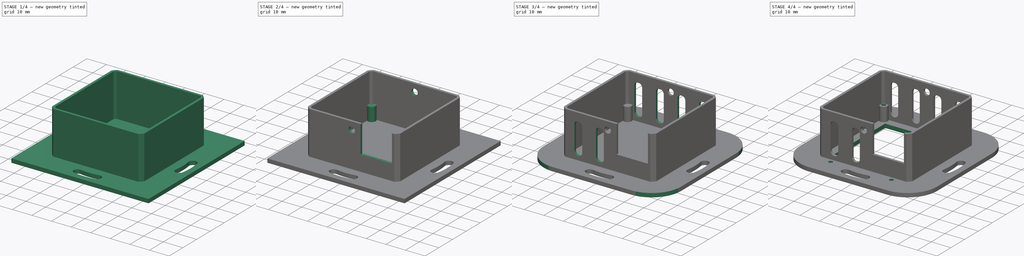
[diagram: build sequence overview — one tinted view per stage of 4, left to right]
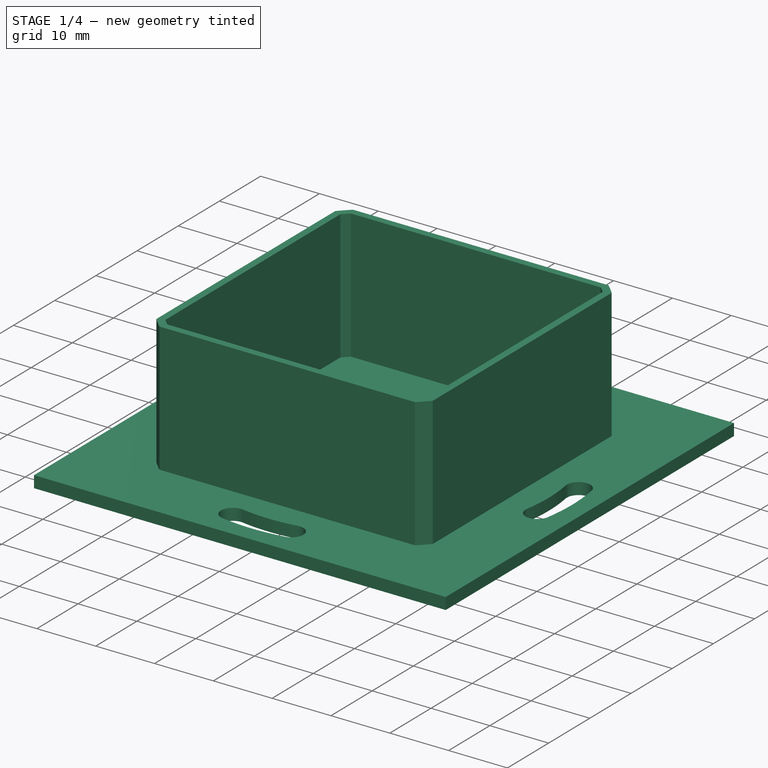
[diagram: stage 1 of 4 — iso view after this stage's code; geometry added in this stage tinted green]
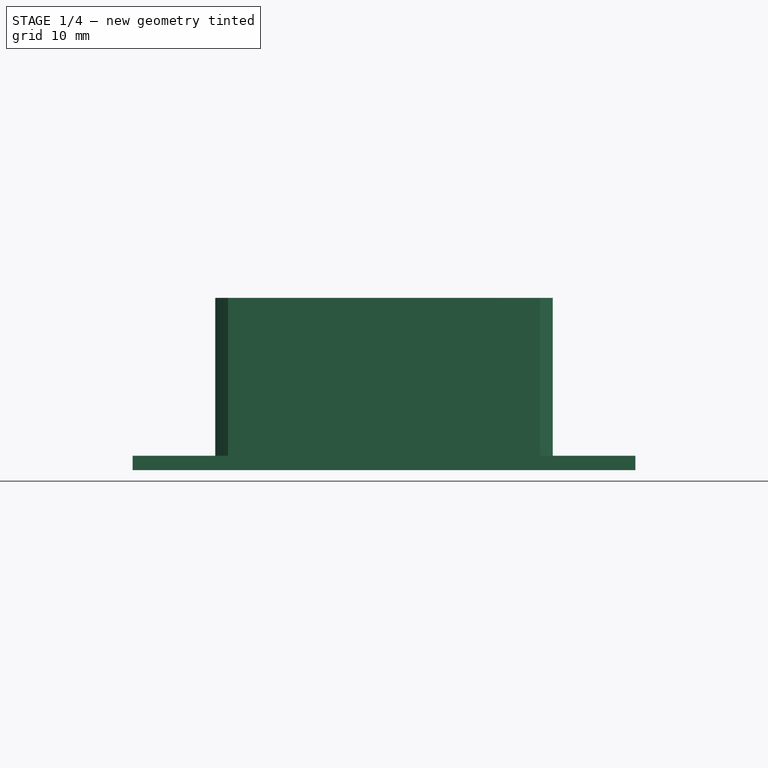
[diagram: stage 1 of 4 — front view after this stage's code; geometry added in this stage tinted green]
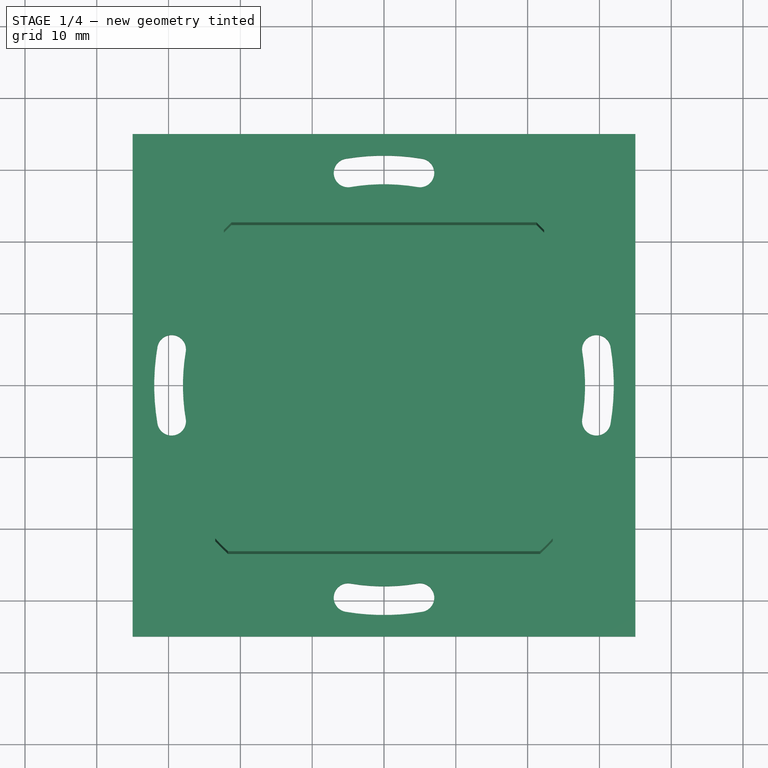
[diagram: stage 1 of 4 — top view after this stage's code; geometry added in this stage tinted green]
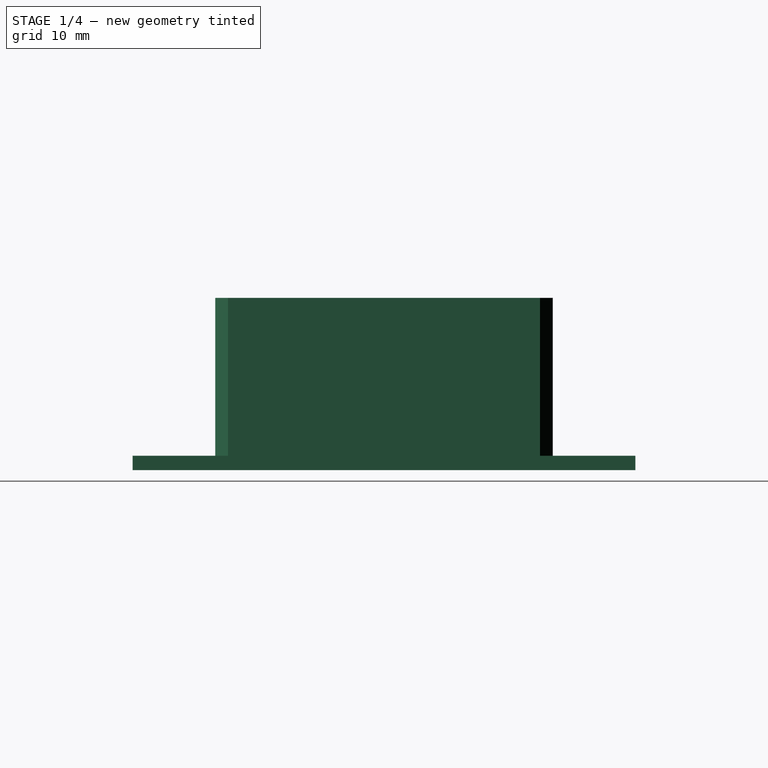
[diagram: stage 1 of 4 — right view after this stage's code; geometry added in this stage tinted green]
FCSTD DOCUMENT  (FreeCAD 0.20R)
Label: box3
License: All rights reserved
LicenseURL: http://en.wikipedia.org/wiki/All_rights_reserved
objects: Sketcher::SketchObject×11, PartDesign::Pocket×8, PartDesign::Pad×3, PartDesign::Fillet×1, PartDesign::Body×1
note: 36 computed .brp shape members not serialized (recipe doc carries the construction recipe); baked Part::Feature solids carry a one-line shape summary decoded from their .brp

FEATURE [Sketcher::SketchObject] Sketch
  FullyConstrained = true
  MapMode = 5
  Support = -> [XY_Plane]
  sketch-geometry (20):
    g0: LineSegment StartX=-35 StartY=35 StartZ=0 EndX=35 EndY=35 EndZ=0
    g1: LineSegment StartX=35 StartY=35 StartZ=0 EndX=35 EndY=-35 EndZ=0
    g2: LineSegment StartX=35 StartY=-35 StartZ=0 EndX=-35 EndY=-35 EndZ=0
    g3: LineSegment StartX=-35 StartY=-35 StartZ=0 EndX=-35 EndY=35 EndZ=0
    g4: ArcOfCircle CenterX=0 CenterY=0 CenterZ=0 NormalX=0 NormalY=0 NormalZ=1 AngleXU=0 Radius=28 StartAngle=6.11574 EndAngle=6.45063
    g5: ArcOfCircle CenterX=0 CenterY=0 CenterZ=0 NormalX=0 NormalY=0 NormalZ=1 AngleXU=0 Radius=32 StartAngle=6.11574 EndAngle=6.45063
    g6: ArcOfCircle CenterX=0 CenterY=0 CenterZ=0 NormalX=0 NormalY=0 NormalZ=1 AngleXU=0 Radius=28 StartAngle=2.97414 EndAngle=3.30904
    g7: ArcOfCircle CenterX=0 CenterY=0 CenterZ=0 NormalX=0 NormalY=0 NormalZ=1 AngleXU=0 Radius=32 StartAngle=2.97414 EndAngle=3.30904
    g8: ArcOfCircle CenterX=-29.5804 CenterY=5 CenterZ=0 NormalX=0 NormalY=0 NormalZ=1 AngleXU=0 Radius=2 StartAngle=6.11574 EndAngle=9.25733
    g9: ArcOfCircle CenterX=-29.5804 CenterY=-5 CenterZ=0 NormalX=0 NormalY=0 NormalZ=1 AngleXU=0 Radius=2 StartAngle=3.30904 EndAngle=6.45063
    g10: ArcOfCircle CenterX=29.5804 CenterY=5 CenterZ=0 NormalX=0 NormalY=0 NormalZ=1 AngleXU=0 Radius=2 StartAngle=0.167448 EndAngle=3.30904
    g11: ArcOfCircle CenterX=29.5804 CenterY=-5 CenterZ=0 NormalX=0 NormalY=0 NormalZ=1 AngleXU=0 Radius=2 StartAngle=2.97414 EndAngle=6.11574
    g12: ArcOfCircle CenterX=0 CenterY=0 CenterZ=0 NormalX=0 NormalY=0 NormalZ=1 AngleXU=0 Radius=28 StartAngle=1.40335 EndAngle=1.73824
    g13: ArcOfCircle CenterX=0 CenterY=0 CenterZ=0 NormalX=0 NormalY=0 NormalZ=1 AngleXU=0 Radius=32 StartAngle=1.40335 EndAngle=1.73824
    g14: ArcOfCircle CenterX=0 CenterY=0 CenterZ=0 NormalX=0 NormalY=0 NormalZ=1 AngleXU=0 Radius=28 StartAngle=4.54494 EndAngle=4.87984
    g15: ArcOfCircle CenterX=0 CenterY=0 CenterZ=0 NormalX=0 NormalY=0 NormalZ=1 AngleXU=0 Radius=32 StartAngle=4.54494 EndAngle=4.87984
    g16: ArcOfCircle CenterX=5 CenterY=-29.5804 CenterZ=0 NormalX=0 NormalY=0 NormalZ=1 AngleXU=0 Radius=2 StartAngle=4.87984 EndAngle=8.02143
    g17: ArcOfCircle CenterX=-5 CenterY=-29.5804 CenterZ=0 NormalX=0 NormalY=0 NormalZ=1 AngleXU=0 Radius=2 StartAngle=1.40334 EndAngle=4.54495
    g18: ArcOfCircle CenterX=5 CenterY=29.5804 CenterZ=0 NormalX=0 NormalY=0 NormalZ=1 AngleXU=0 Radius=2 StartAngle=4.54494 EndAngle=7.68653
    g19: ArcOfCircle CenterX=-5 CenterY=29.5804 CenterZ=0 NormalX=0 NormalY=0 NormalZ=1 AngleXU=0 Radius=2 StartAngle=1.73824 EndAngle=4.87984
  constraints (52):
    c: Coincident(g0,g1)
    c: Coincident(g1,g2)
    c: Coincident(g2,g3)
    c: Coincident(g3,g0)
    c: Horizontal(g2)
    c: Vertical(g3)
    c: DistanceY(g1,g1) = 70
    c: DistanceX(g0,g0) = 70
    c: Symmetric(g0,g0,g-2)
    c: Symmetric(g1,g0,g-1)
    c: Coincident(g4,g-1)
    c: Coincident(g5,g4)
    c: Coincident(g6,g4)
    c: Coincident(g7,g4)
    c: Tangent(g11,g4) = 1.5708
    c: Tangent(g11,g5) = -1.5708
    c: Tangent(g10,g5) = -1.5708
    c: Tangent(g10,g4) = 1.5708
    c: Radius(g10) = 2
    c: Tangent(g8,g6) = 1.5708
    c: Tangent(g8,g7) = -1.5708
    c: Tangent(g9,g6) = 1.5708
    c: Tangent(g9,g7) = -1.5708
    c: Equal(g10,g8)
    c: Horizontal(g6,g4)
    c: Horizontal(g6,g4)
    c: Radius(g4) = 28
    c: Radius(g6) = 28
    c: DistanceY(g-1,g8) = 5
    c: DistanceY(g9,g-1) = 5
    c: Coincident(g12,g4)
    c: Coincident(g13,g4)
    c: Coincident(g14,g4)
    c: Coincident(g15,g4)
    c: Coincident(g17,g14)
    c: Coincident(g17,g15)
    c: Coincident(g19,g13)
    c: Coincident(g19,g12)
    c: Radius(g18) = 2
    c: Equal(g18,g19)
    c: Equal(g18,g17)
    c: Equal(g18,g16)
    c: Symmetric(g18,g19,g-2)
    c: DistanceX(g-1,g18) = 5
    c: Tangent(g18,g13) = -1.5708
    c: Tangent(g18,g12) = 1.5708
    c: Radius(g14) = 28
    c: Radius(g12) = 28
    c: Tangent(g16,g14) = 1.5708
    c: Tangent(g16,g15) = -1.5708
    c: Symmetric(g16,g17,g-2)
    c: DistanceX(g-1,g16) = 5
FEATURE [PartDesign::Pad] Pad
  Direction = (0,0,1)
  Length = 2
  Length2 = 100
  Profile = -> Sketch
  Type = 0
FEATURE [Sketcher::SketchObject] Sketch001
  FullyConstrained = true
  MapMode = 5
  Placement = pos=(0,0,2) rot=(0,0,1;0rad)
  Support = -> [Pad]
  sketch-geometry (8):
    g0: LineSegment StartX=21.7198 StartY=-23.5 StartZ=0 EndX=-21.7198 EndY=-23.5 EndZ=0
    g1: LineSegment StartX=-21.7198 StartY=23.5 StartZ=0 EndX=21.7198 EndY=23.5 EndZ=0
    g2: LineSegment StartX=-23.5 StartY=21.7198 StartZ=0 EndX=-23.5 EndY=-21.7198 EndZ=0
    g3: LineSegment StartX=23.5 StartY=21.7198 StartZ=0 EndX=23.5 EndY=-21.7198 EndZ=0
    g4: ArcOfCircle CenterX=0 CenterY=0 CenterZ=0 NormalX=0 NormalY=0 NormalZ=1 AngleXU=0 Radius=32 StartAngle=3.88764 EndAngle=3.96634
    g5: ArcOfCircle CenterX=0 CenterY=0 CenterZ=0 NormalX=0 NormalY=0 NormalZ=1 AngleXU=0 Radius=32 StartAngle=2.31685 EndAngle=2.39554
    g6: ArcOfCircle CenterX=0 CenterY=0 CenterZ=0 NormalX=0 NormalY=0 NormalZ=1 AngleXU=0 Radius=32 StartAngle=5.45844 EndAngle=5.53713
    g7: ArcOfCircle CenterX=0 CenterY=0 CenterZ=0 NormalX=0 NormalY=0 NormalZ=1 AngleXU=0 Radius=32 StartAngle=0.746051 EndAngle=0.824745
  constraints (22):
    c: Horizontal(g0)
    c: Horizontal(g1)
    c: Vertical(g3)
    c: Coincident(g4,g-1)
    c: Coincident(g4,g0)
    c: Coincident(g4,g2)
    c: Coincident(g5,g4)
    c: Coincident(g5,g1)
    c: Coincident(g5,g2)
    c: Coincident(g6,g4)
    c: Coincident(g6,g0)
    c: Coincident(g6,g3)
    c: Coincident(g7,g4)
    c: Coincident(g7,g1)
    c: Coincident(g7,g3)
    c: Radius(g7) = 32
    c: Equal(g7,g5)
    c: Symmetric(g2,g2,g-1)
    c: Horizontal(g2,g3)
    c: Symmetric(g0,g1,g-1)
    c: DistanceX(g2,g3) = 47
    c: DistanceY(g0,g1) = 47
FEATURE [PartDesign::Pad] Pad001
  BaseFeature = -> Pad
  Direction = (0,0,1)
  Length = 22
  Length2 = 100
  Profile = -> Sketch001
  Type = 0
FEATURE [Sketcher::SketchObject] Sketch002
  FullyConstrained = true
  MapMode = 5
  Placement = pos=(0,0,24) rot=(0,0,1;0rad)
  Support = -> [Pad001]
  sketch-geometry (8):
    g0: LineSegment StartX=-22.3 StartY=21.245 StartZ=0 EndX=-22.3 EndY=-21.245 EndZ=0
    g1: LineSegment StartX=22.3 StartY=21.245 StartZ=0 EndX=22.3 EndY=-21.245 EndZ=0
    g2: LineSegment StartX=-21.245 StartY=-22.3 StartZ=0 EndX=21.245 EndY=-22.3 EndZ=0
    g3: LineSegment StartX=-21.245 StartY=22.3 StartZ=0 EndX=21.245 EndY=22.3 EndZ=0
    g4: ArcOfCircle CenterX=0 CenterY=0 CenterZ=0 NormalX=0 NormalY=0 NormalZ=1 AngleXU=0 Radius=30.8 StartAngle=0.761175 EndAngle=0.809621
    g5: ArcOfCircle CenterX=0 CenterY=0 CenterZ=0 NormalX=0 NormalY=0 NormalZ=1 AngleXU=0 Radius=30.8 StartAngle=2.33197 EndAngle=2.38042
    g6: ArcOfCircle CenterX=0 CenterY=0 CenterZ=0 NormalX=0 NormalY=0 NormalZ=1 AngleXU=0 Radius=30.8 StartAngle=3.90277 EndAngle=3.95121
    g7: ArcOfCircle CenterX=0 CenterY=0 CenterZ=0 NormalX=0 NormalY=0 NormalZ=1 AngleXU=0 Radius=30.8 StartAngle=5.47356 EndAngle=5.52201
  constraints (22):
    c: Vertical(g0)
    c: Vertical(g1)
    c: Horizontal(g2)
    c: Horizontal(g3)
    c: Coincident(g4,g-1)
    c: Coincident(g4,g3)
    c: Coincident(g4,g1)
    c: Coincident(g5,g4)
    c: Coincident(g5,g0)
    c: Coincident(g5,g3)
    c: Coincident(g6,g4)
    c: Coincident(g6,g0)
    c: Coincident(g6,g2)
    c: Coincident(g7,g4)
    c: Coincident(g7,g2)
    c: Coincident(g7,g1)
    c: DistanceX(g0,g1) = 44.6
    c: DistanceY(g2,g3) = 44.6
    c: Symmetric(g2,g3,g-1)
    c: Symmetric(g1,g0,g-2)
    c: Equal(g6,g5)
    c: Radius(g5) = 30.8
FEATURE [PartDesign::Pocket] Pocket
  BaseFeature = -> Pad001
  Direction = (0,0,-1)
  Length = 22
  Length2 = 100
  Profile = -> Sketch002
  Type = 0
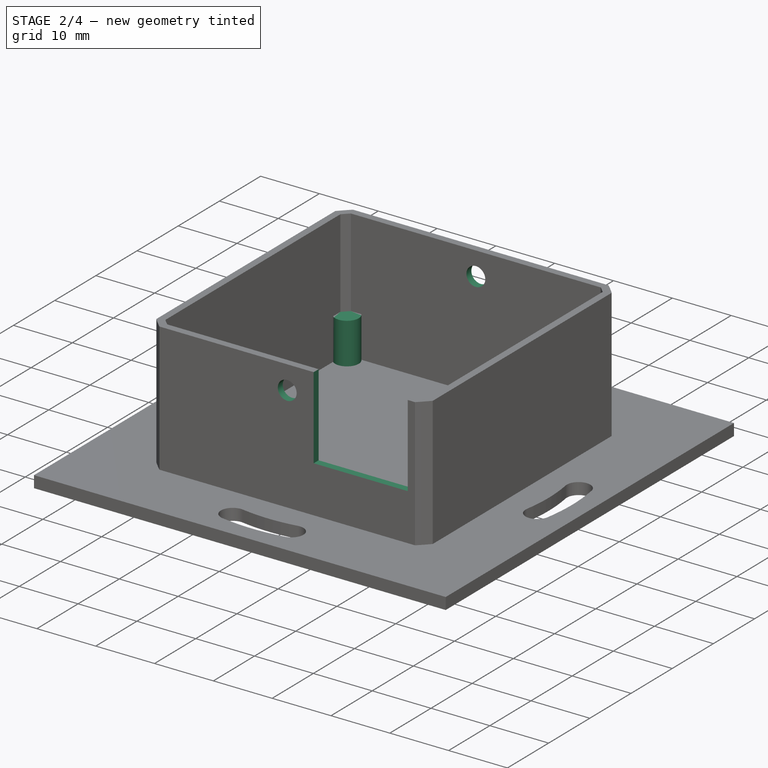
[diagram: stage 2 of 4 — iso view after this stage's code; geometry added in this stage tinted green]
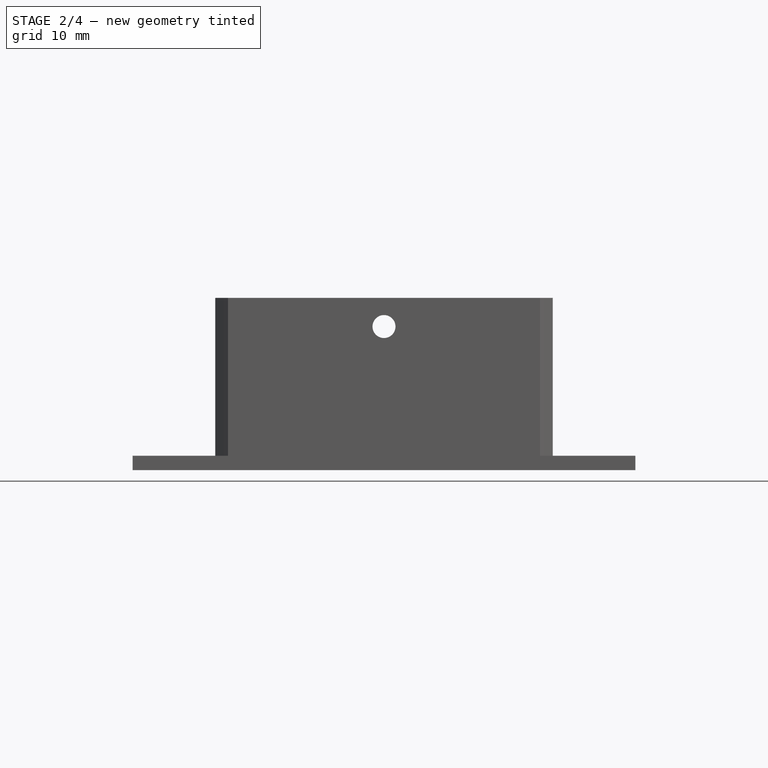
[diagram: stage 2 of 4 — front view after this stage's code; geometry added in this stage tinted green]
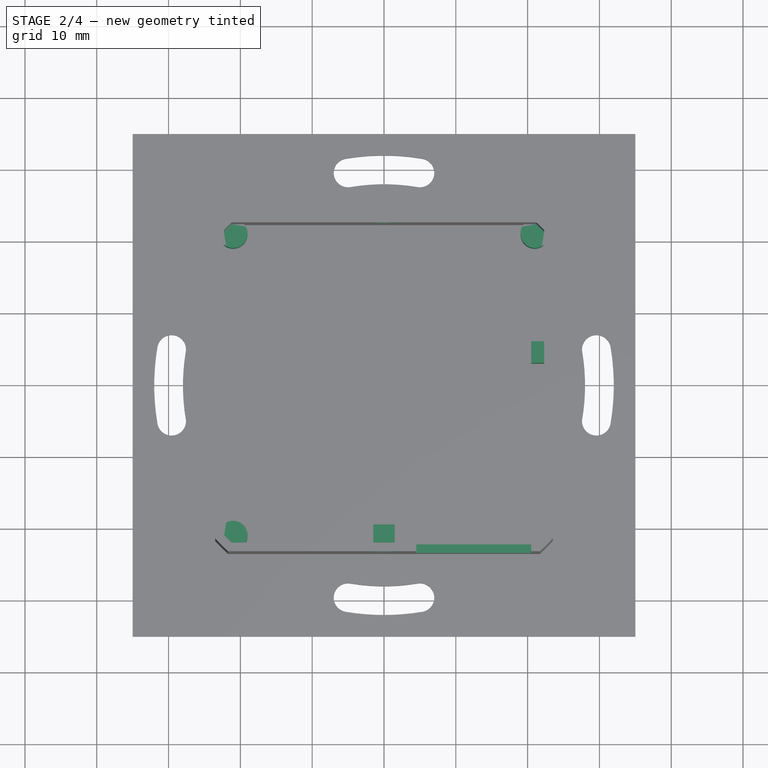
[diagram: stage 2 of 4 — top view after this stage's code; geometry added in this stage tinted green]
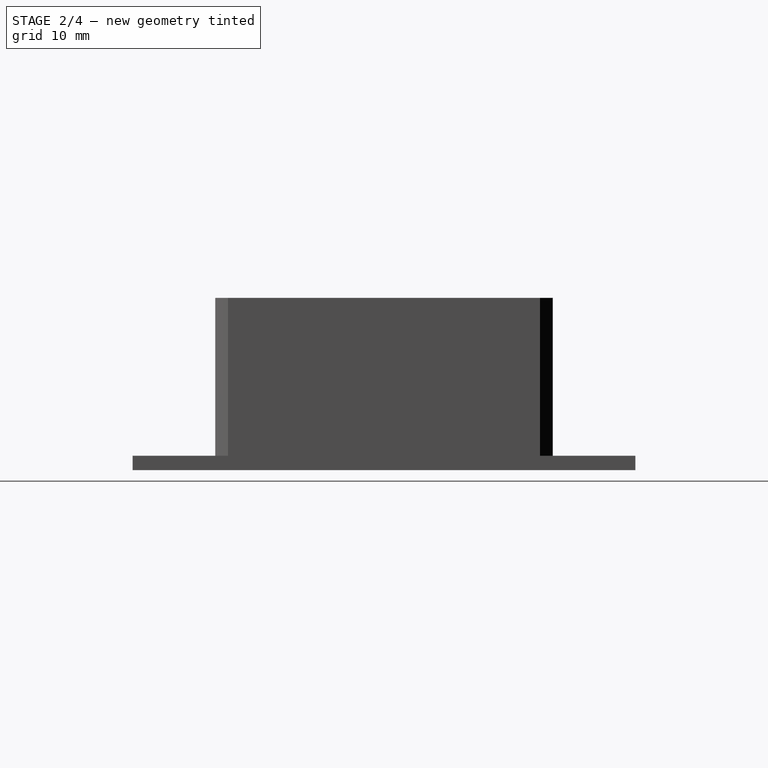
[diagram: stage 2 of 4 — right view after this stage's code; geometry added in this stage tinted green]
FEATURE [Sketcher::SketchObject] Sketch003
  FullyConstrained = false
  MapMode = 5
  Placement = pos=(0,-23.5,0) rot=(1,0,0;1.5708rad)
  Support = -> [Pocket]
  sketch-geometry (4):
    g0: LineSegment StartX=4.5 StartY=33.8647 StartZ=0 EndX=20.5 EndY=33.8647 EndZ=0
    g1: LineSegment StartX=20.5 StartY=33.8647 StartZ=0 EndX=20.5 EndY=10 EndZ=0
    g2: LineSegment StartX=20.5 StartY=10 StartZ=0 EndX=4.5 EndY=10 EndZ=0
    g3: LineSegment StartX=4.5 StartY=10 StartZ=0 EndX=4.5 EndY=33.8647 EndZ=0
  constraints (11):
    c: Coincident(g0,g1)
    c: Coincident(g1,g2)
    c: Coincident(g2,g3)
    c: Coincident(g3,g0)
    c: Horizontal(g0)
    c: Horizontal(g2)
    c: Vertical(g1)
    c: Vertical(g3)
    c: DistanceX(g0,g0) = 16
    c: DistanceX(g-1,g0) = 20.5
    c: DistanceY(g-1,g2) = 10
FEATURE [PartDesign::Pocket] Pocket001
  BaseFeature = -> Pocket
  Direction = (0,1,-2e-16)
  Length = 18
  Length2 = 100
  Profile = -> Sketch003
  Type = 0
FEATURE [Sketcher::SketchObject] Sketch009
  FullyConstrained = true
  MapMode = 5
  Placement = pos=(0,-23.5,0) rot=(1,0,0;1.5708rad)
  sketch-geometry (1):
    g0: Circle CenterX=0 CenterY=20 CenterZ=0 NormalX=0 NormalY=0 NormalZ=1 AngleXU=0 Radius=1.6
  constraints (3):
    c: PointOnObject(g0,g-2)
    c: Radius(g0) = 1.6
    c: DistanceY(g-1,g0) = 20
FEATURE [PartDesign::Pocket] Pocket005
  BaseFeature = -> Pocket001
  Direction = (0,1,-2e-16)
  Length = 5
  Length2 = 100
  Profile = -> Sketch009
  Type = 1
FEATURE [Sketcher::SketchObject] Sketch010
  FullyConstrained = true
  MapMode = 5
  Placement = pos=(0,0,2) rot=(0,0,1;0rad)
  Support = -> [Pocket005]
  sketch-geometry (11):
    g0: Circle CenterX=21 CenterY=21 CenterZ=0 NormalX=0 NormalY=0 NormalZ=1 AngleXU=0 Radius=2
    g1: Circle CenterX=-21 CenterY=21 CenterZ=0 NormalX=0 NormalY=0 NormalZ=1 AngleXU=0 Radius=2
    g2: Circle CenterX=-21 CenterY=-21 CenterZ=0 NormalX=0 NormalY=0 NormalZ=1 AngleXU=0 Radius=2
    g3: LineSegment StartX=20.5 StartY=6 StartZ=0 EndX=23 EndY=6 EndZ=0
    g4: LineSegment StartX=23 StartY=6 StartZ=0 EndX=23 EndY=3 EndZ=0
    g5: LineSegment StartX=23 StartY=3 StartZ=0 EndX=20.5 EndY=3 EndZ=0
    g6: LineSegment StartX=20.5 StartY=3 StartZ=0 EndX=20.5 EndY=6 EndZ=0
    g7: LineSegment StartX=-1.5 StartY=-19.5 StartZ=0 EndX=1.5 EndY=-19.5 EndZ=0
    g8: LineSegment StartX=1.5 StartY=-19.5 StartZ=0 EndX=1.5 EndY=-22.5 EndZ=0
    g9: LineSegment StartX=1.5 StartY=-22.5 StartZ=0 EndX=-1.5 EndY=-22.5 EndZ=0
    g10: LineSegment StartX=-1.5 StartY=-22.5 StartZ=0 EndX=-1.5 EndY=-19.5 EndZ=0
  constraints (30):
    c: Symmetric(g1,g0,g-2)
    c: Symmetric(g2,g1,g-1)
    c: DistanceX(g1,g0) = 42
    c: DistanceY(g2,g1) = 42
    c: Coincident(g3,g4)
    c: Coincident(g4,g5)
    c: Coincident(g5,g6)
    c: Coincident(g6,g3)
    c: Horizontal(g3)
    c: Horizontal(g5)
    c: Vertical(g4)
    c: Coincident(g7,g8)
    c: Coincident(g8,g9)
    c: Coincident(g9,g10)
    c: Coincident(g10,g7)
    c: Horizontal(g9)
    c: Vertical(g8)
    c: Vertical(g10)
    c: Radius(g0) = 2
    c: Equal(g0,g1)
    c: Equal(g0,g2)
    c: DistanceX(g3,g3) = 2.5
    c: DistanceX(g-1,g3) = 20.5
    c: Symmetric(g7,g7,g-2)
    c: DistanceY(g7,g-1) = 19.5
    c: DistanceX(g7,g7) = 3
    c: DistanceY(g8,g8) = 3
    c: DistanceY(g6,g6) = 3
    c: Vertical(g6)
    c: DistanceY(g-1,g4) = 3
FEATURE [PartDesign::Pad] Pad004
  BaseFeature = -> Pocket005
  Direction = (0,0,1)
  Length = 7
  Length2 = 100
  Profile = -> Sketch010
  Type = 0
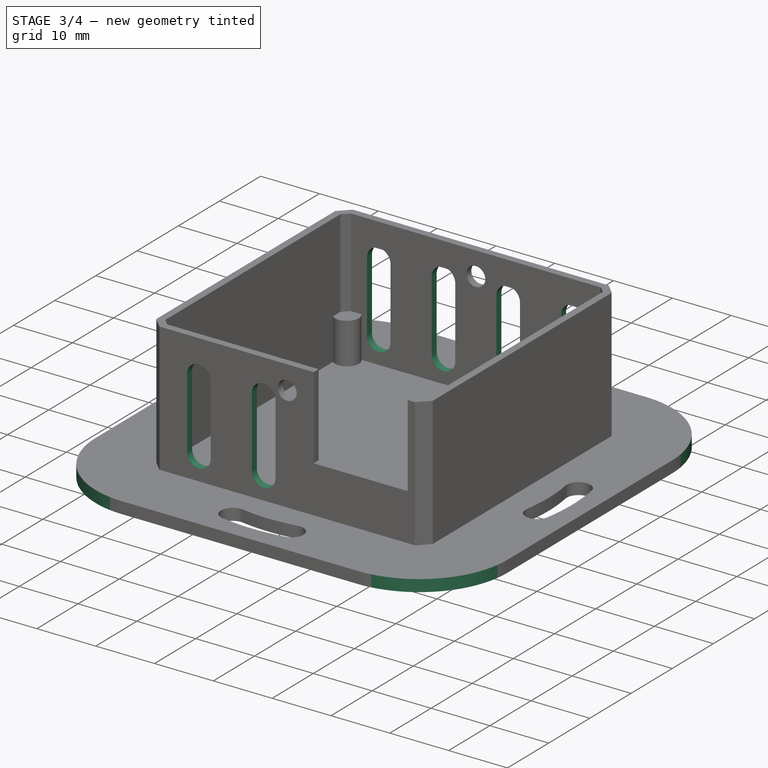
[diagram: stage 3 of 4 — iso view after this stage's code; geometry added in this stage tinted green]
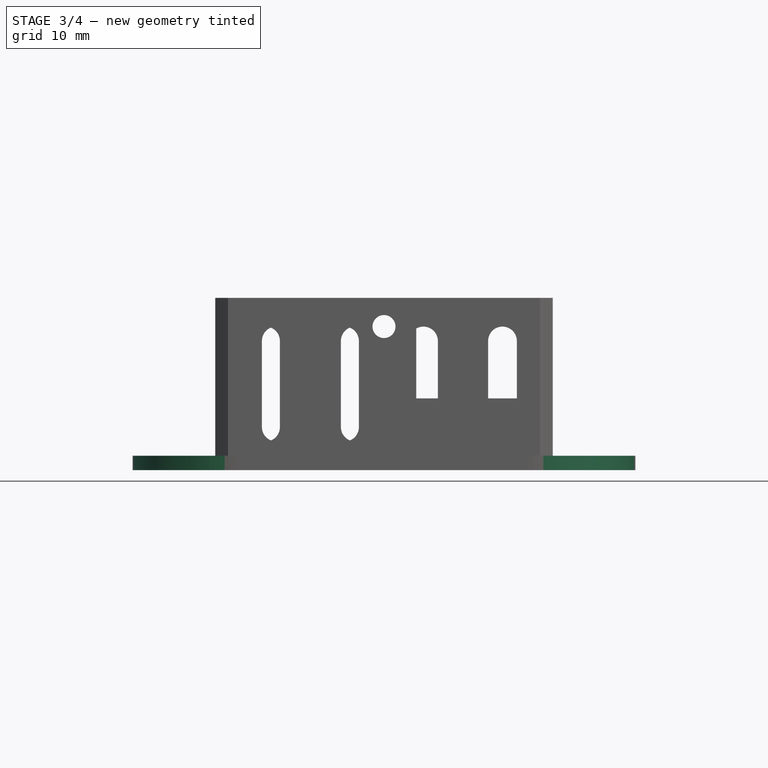
[diagram: stage 3 of 4 — front view after this stage's code; geometry added in this stage tinted green]
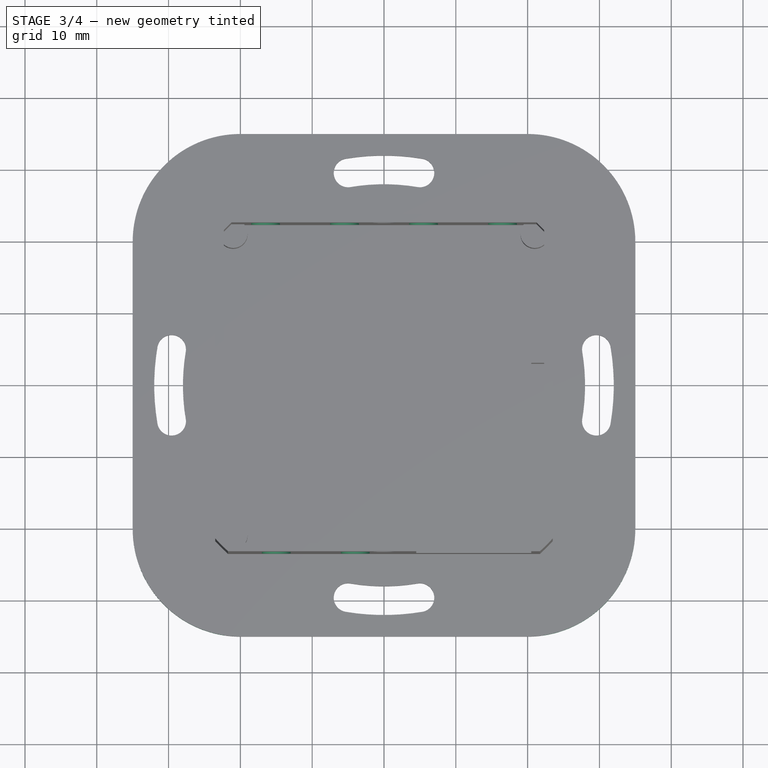
[diagram: stage 3 of 4 — top view after this stage's code; geometry added in this stage tinted green]
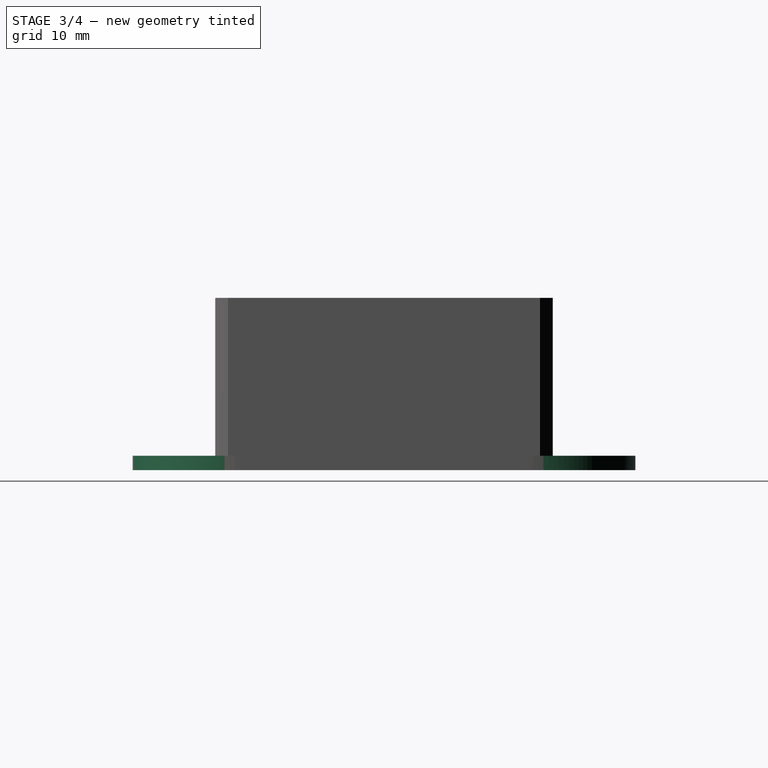
[diagram: stage 3 of 4 — right view after this stage's code; geometry added in this stage tinted green]
FEATURE [Sketcher::SketchObject] Sketch011
  FullyConstrained = false
  MapMode = 5
  Placement = pos=(0,23.5,0) rot=(0,0.707107,0.707107;3.14159rad)
  Support = -> [Pad004]
  sketch-geometry (19):
    g0: LineSegment StartX=-18.5 StartY=17.9931 StartZ=0 EndX=-18.5 EndY=5.9931 EndZ=0
    g1: LineSegment StartX=-14.5 StartY=17.9931 StartZ=0 EndX=-14.5 EndY=5.9931 EndZ=0
    g2: LineSegment StartX=-7.5 StartY=17.9931 StartZ=0 EndX=-7.5 EndY=5.9931 EndZ=0
    g3: LineSegment StartX=-3.5 StartY=17.9931 StartZ=0 EndX=-3.5 EndY=5.9931 EndZ=0
    g4: LineSegment StartX=3.5 StartY=17.9931 StartZ=0 EndX=3.5 EndY=5.9931 EndZ=0
    g5: LineSegment StartX=7.5 StartY=17.9931 StartZ=0 EndX=7.5 EndY=5.9931 EndZ=0
    g6: LineSegment StartX=14.5 StartY=17.9931 StartZ=0 EndX=14.5 EndY=5.9931 EndZ=0
    g7: LineSegment StartX=18.5 StartY=17.9931 StartZ=0 EndX=18.5 EndY=5.9931 EndZ=0
    g8: ArcOfCircle CenterX=-16.5 CenterY=17.9931 CenterZ=0 NormalX=0 NormalY=0 NormalZ=1 AngleXU=0 Radius=2 StartAngle=0 EndAngle=3.14159
    g9: ArcOfCircle CenterX=-5.5 CenterY=17.9931 CenterZ=0 NormalX=0 NormalY=0 NormalZ=1 AngleXU=0 Radius=2 StartAngle=0 EndAngle=3.14159
    g10: ArcOfCircle CenterX=5.5 CenterY=17.9931 CenterZ=0 NormalX=0 NormalY=0 NormalZ=1 AngleXU=0 Radius=2 StartAngle=2e-16 EndAngle=3.14159
    g11: ArcOfCircle CenterX=16.5 CenterY=17.9931 CenterZ=0 NormalX=0 NormalY=0 NormalZ=1 AngleXU=0 Radius=2 StartAngle=9e-16 EndAngle=3.14159
    g12: ArcOfCircle CenterX=16.5 CenterY=5.9931 CenterZ=0 NormalX=0 NormalY=0 NormalZ=1 AngleXU=0 Radius=2 StartAngle=3.14159 EndAngle=6.28319
    g13: ArcOfCircle CenterX=5.5 CenterY=5.9931 CenterZ=0 NormalX=0 NormalY=0 NormalZ=1 AngleXU=0 Radius=2 StartAngle=3.14159 EndAngle=6.28319
    g14: ArcOfCircle CenterX=-5.5 CenterY=5.9931 CenterZ=0 NormalX=0 NormalY=0 NormalZ=1 AngleXU=0 Radius=2 StartAngle=3.14159 EndAngle=6.28319
    g15: ArcOfCircle CenterX=-16.5 CenterY=5.9931 CenterZ=0 NormalX=0 NormalY=0 NormalZ=1 AngleXU=0 Radius=2 StartAngle=3.14159 EndAngle=6.28319
    g16: LineSegment StartX=-14.5 StartY=5.9931 StartZ=0 EndX=-7.5 EndY=5.9931 EndZ=0
    g17: LineSegment StartX=-3.5 StartY=5.9931 StartZ=0 EndX=3.5 EndY=5.9931 EndZ=0
    g18: LineSegment StartX=7.5 StartY=5.9931 StartZ=0 EndX=14.5 EndY=5.9931 EndZ=0
  constraints (60):
    c: Vertical(g0)
    c: Vertical(g2)
    c: Vertical(g3)
    c: Vertical(g4)
    c: Vertical(g5)
    c: Vertical(g6)
    c: Vertical(g7)
    c: Coincident(g8,g0)
    c: Coincident(g8,g1)
    c: Coincident(g9,g2)
    c: Coincident(g9,g3)
    c: Coincident(g10,g4)
    c: Coincident(g10,g5)
    c: Coincident(g11,g6)
    c: Coincident(g11,g7)
    c: Coincident(g12,g7)
    c: Coincident(g12,g6)
    c: Coincident(g13,g5)
    c: Coincident(g13,g4)
    c: Coincident(g14,g3)
    c: Coincident(g14,g2)
    c: Coincident(g15,g1)
    c: Coincident(g15,g0)
    c: Horizontal(g0,g15)
    c: Horizontal(g15,g1)
    c: Horizontal(g2,g14)
    c: Horizontal(g14,g3)
    c: Horizontal(g4,g13)
    c: Horizontal(g13,g5)
    c: Horizontal(g6,g12)
    c: Horizontal(g12,g7)
    c: Horizontal(g0,g8)
    c: Horizontal(g8,g1)
    c: Horizontal(g2,g9)
    c: Horizontal(g9,g3)
    c: Horizontal(g4,g10)
    c: Horizontal(g10,g5)
    c: Horizontal(g6,g11)
    c: Horizontal(g11,g7)
    c: Symmetric(g3,g4,g-2)
    c: Horizontal(g4,g3)
    c: Equal(g1,g3)
    c: Equal(g5,g7)
    c: Horizontal(g3,g1)
    c: Horizontal(g4,g6)
    c: Radius(g9) = 2
    c: Equal(g9,g10)
    c: Equal(g10,g11)
    c: DistanceX(g5,g6) = 7
    c: Equal(g9,g8)
    c: Coincident(g16,g1)
    c: Coincident(g16,g2)
    c: Coincident(g17,g3)
    c: Coincident(g17,g4)
    c: Coincident(g18,g5)
    c: Coincident(g18,g6)
    c: Equal(g18,g17)
    c: Equal(g17,g16)
    c: Vertical(g1)
    c: DistanceY(g0,g0) = 12
FEATURE [PartDesign::Pocket] Pocket006
  BaseFeature = -> Pad004
  Direction = (0,-1,2e-16)
  Length = 5
  Length2 = 100
  Profile = -> Sketch011
  Type = 0
FEATURE [Sketcher::SketchObject] Sketch012
  FullyConstrained = false
  MapMode = 5
  Placement = pos=(0,-23.5,0) rot=(1,0,0;1.5708rad)
  Support = -> [Pocket006]
  sketch-geometry (8):
    g0: LineSegment StartX=-17 StartY=18 StartZ=0 EndX=-17 EndY=6 EndZ=0
    g1: LineSegment StartX=-13 StartY=18 StartZ=0 EndX=-13 EndY=6 EndZ=0
    g2: LineSegment StartX=-6 StartY=18 StartZ=0 EndX=-6 EndY=6 EndZ=0
    g3: LineSegment StartX=-2 StartY=18 StartZ=0 EndX=-2 EndY=6 EndZ=0
    g4: ArcOfCircle CenterX=-15 CenterY=18 CenterZ=0 NormalX=0 NormalY=0 NormalZ=1 AngleXU=0 Radius=2 StartAngle=-9e-16 EndAngle=3.14159
    g5: ArcOfCircle CenterX=-4 CenterY=18 CenterZ=0 NormalX=0 NormalY=0 NormalZ=1 AngleXU=0 Radius=2 StartAngle=-9e-16 EndAngle=3.14159
    g6: ArcOfCircle CenterX=-15 CenterY=6 CenterZ=0 NormalX=0 NormalY=0 NormalZ=1 AngleXU=0 Radius=2 StartAngle=3.14159 EndAngle=6.28319
    g7: ArcOfCircle CenterX=-4 CenterY=6 CenterZ=0 NormalX=0 NormalY=0 NormalZ=1 AngleXU=0 Radius=2 StartAngle=3.14159 EndAngle=6.28319
  constraints (27):
    c: Vertical(g0)
    c: Vertical(g1)
    c: Vertical(g2)
    c: Vertical(g3)
    c: Coincident(g4,g0)
    c: Coincident(g4,g1)
    c: Coincident(g5,g2)
    c: Coincident(g5,g3)
    c: Coincident(g6,g0)
    c: Coincident(g6,g1)
    c: Coincident(g7,g2)
    c: Coincident(g7,g3)
    c: Horizontal(g1,g6)
    c: Horizontal(g6,g0)
    c: Horizontal(g1,g4)
    c: Horizontal(g4,g0)
    c: Horizontal(g2,g5)
    c: Horizontal(g5,g3)
    c: Horizontal(g3,g7)
    c: Horizontal(g7,g2)
    c: DistanceX(g3,g-1) = 2
    c: Radius(g5) = 2
    c: Equal(g5,g4)
    c: Horizontal(g3,g1)
    c: Horizontal(g3,g1)
    c: DistanceX(g1,g2) = 7
    c: DistanceY(g0,g0) = 12
FEATURE [PartDesign::Pocket] Pocket007
  BaseFeature = -> Pocket006
  Direction = (0,1,-2e-16)
  Length = 2
  Length2 = 100
  Profile = -> Sketch012
  Type = 0
FEATURE [PartDesign::Fillet] Fillet
  Base = -> Pocket007 [Edge5,Edge1,Edge8,Edge2]
  BaseFeature = -> Pocket007
  Radius = 15
  SupportTransform = false
  UseAllEdges = false
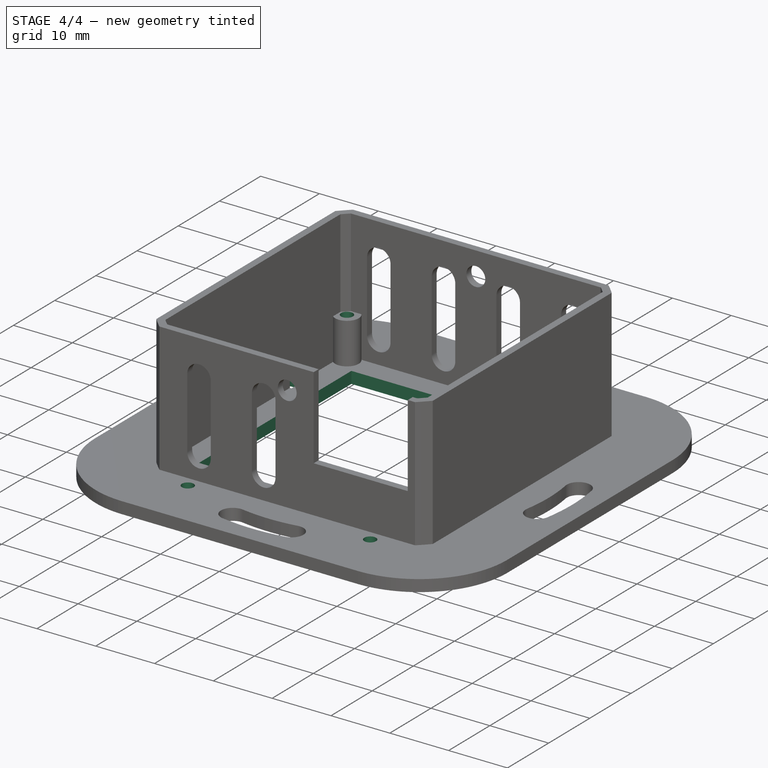
[diagram: stage 4 of 4 — iso view after this stage's code; geometry added in this stage tinted green]
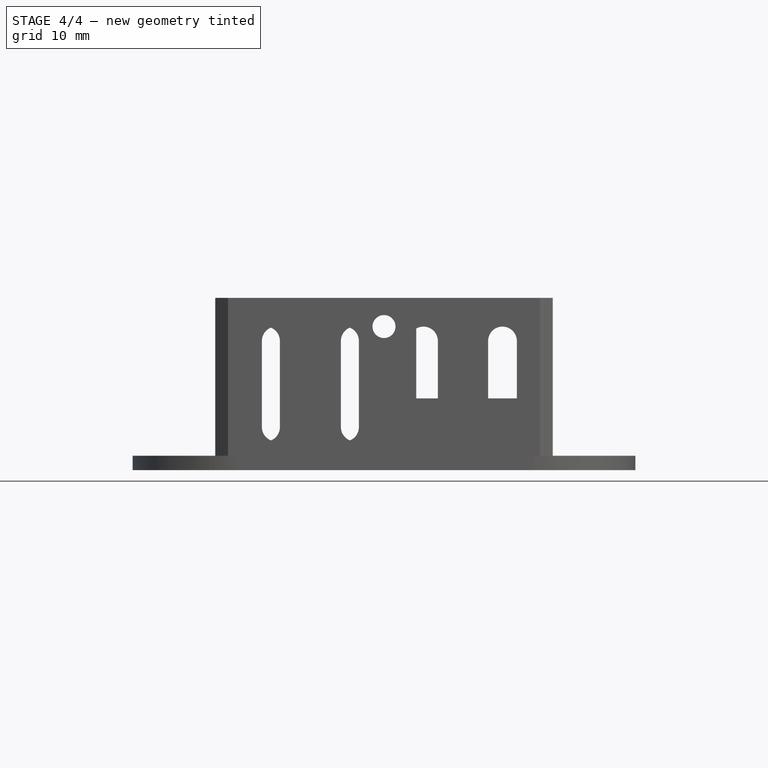
[diagram: stage 4 of 4 — front view after this stage's code; geometry added in this stage tinted green]
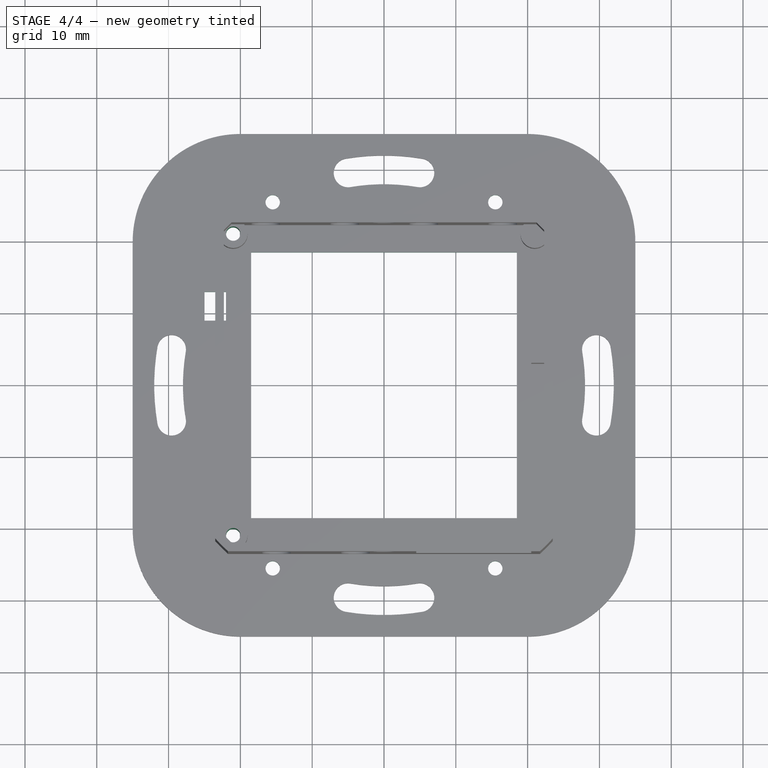
[diagram: stage 4 of 4 — top view after this stage's code; geometry added in this stage tinted green]
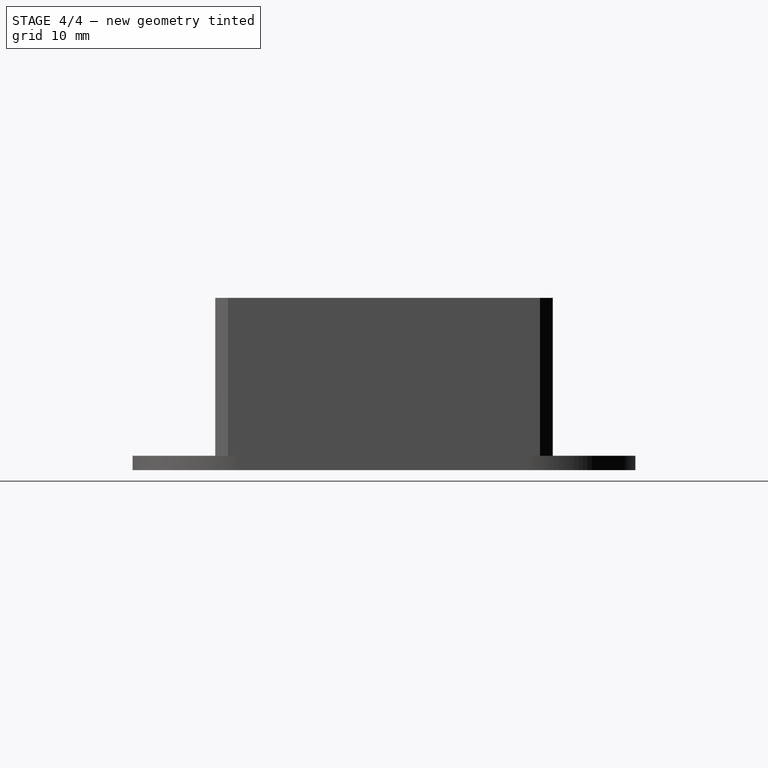
[diagram: stage 4 of 4 — right view after this stage's code; geometry added in this stage tinted green]
FEATURE [Sketcher::SketchObject] Sketch014
  FullyConstrained = true
  MapMode = 5
  Placement = pos=(0,0,0) rot=(1,0,0;3.14159rad)
  Support = -> [Fillet]
  sketch-geometry (4):
    g0: LineSegment StartX=-25 StartY=-9 StartZ=0 EndX=-22 EndY=-9 EndZ=0
    g1: LineSegment StartX=-22 StartY=-9 StartZ=0 EndX=-22 EndY=-13 EndZ=0
    g2: LineSegment StartX=-22 StartY=-13 StartZ=0 EndX=-25 EndY=-13 EndZ=0
    g3: LineSegment StartX=-25 StartY=-13 StartZ=0 EndX=-25 EndY=-9 EndZ=0
  constraints (12):
    c: Coincident(g0,g1)
    c: Coincident(g1,g2)
    c: Coincident(g2,g3)
    c: Coincident(g3,g0)
    c: Horizontal(g0)
    c: Horizontal(g2)
    c: Vertical(g1)
    c: Vertical(g3)
    c: DistanceY(g1,g1) = 4
    c: DistanceX(g2,g2) = 3
    c: DistanceX(g0,g-1) = 22
    c: DistanceY(g0,g-1) = 9
FEATURE [PartDesign::Pocket] Pocket009
  BaseFeature = -> Fillet
  Direction = (0,0,1)
  Length = 4
  Length2 = 100
  Profile = -> Sketch014
  Type = 0
FEATURE [Sketcher::SketchObject] Sketch015
  FullyConstrained = true
  MapMode = 5
  Placement = pos=(0,0,0) rot=(1,0,0;3.14159rad)
  Support = -> [Pocket009]
  sketch-geometry (2):
    g0: Circle CenterX=-21 CenterY=21 CenterZ=0 NormalX=0 NormalY=0 NormalZ=1 AngleXU=0 Radius=1
    g1: Circle CenterX=-21 CenterY=-21 CenterZ=0 NormalX=0 NormalY=0 NormalZ=1 AngleXU=0 Radius=1
  constraints (5):
    c: Symmetric(g1,g0,g-1)
    c: DistanceY(g1,g0) = 42
    c: DistanceX(g0,g-1) = 21
    c: Radius(g0) = 1
    c: Equal(g0,g1)
FEATURE [PartDesign::Pocket] Pocket010
  BaseFeature = -> Pocket009
  Direction = (0,0,1)
  Length = 5
  Length2 = 100
  Profile = -> Sketch015
  Type = 1
FEATURE [Sketcher::SketchObject] Sketch016
  FullyConstrained = true
  MapMode = 5
  Placement = pos=(0,0,4) rot=(1,0,0;3.14159rad)
  Support = -> [Pocket010]
  sketch-geometry (8):
    g0: Circle CenterX=15.5 CenterY=25.5 CenterZ=0 NormalX=0 NormalY=0 NormalZ=1 AngleXU=0 Radius=1
    g1: Circle CenterX=-15.5 CenterY=25.5 CenterZ=0 NormalX=0 NormalY=0 NormalZ=1 AngleXU=0 Radius=1
    g2: Circle CenterX=-15.5 CenterY=-25.5 CenterZ=0 NormalX=0 NormalY=0 NormalZ=1 AngleXU=0 Radius=1
    g3: Circle CenterX=15.5 CenterY=-25.5 CenterZ=0 NormalX=0 NormalY=0 NormalZ=1 AngleXU=0 Radius=1
    g4: LineSegment StartX=-18.5 StartY=18.5 StartZ=0 EndX=18.5 EndY=18.5 EndZ=0
    g5: LineSegment StartX=18.5 StartY=18.5 StartZ=0 EndX=18.5 EndY=-18.5 EndZ=0
    g6: LineSegment StartX=18.5 StartY=-18.5 StartZ=0 EndX=-18.5 EndY=-18.5 EndZ=0
    g7: LineSegment StartX=-18.5 StartY=-18.5 StartZ=0 EndX=-18.5 EndY=18.5 EndZ=0
  constraints (20):
    c: DistanceX(g1,g0) = 31
    c: DistanceY(g3,g0) = 51
    c: Symmetric(g3,g0,g-1)
    c: Symmetric(g0,g1,g-2)
    c: Horizontal(g2,g3)
    c: Vertical(g2,g1)
    c: Equal(g2,g3)
    c: Equal(g2,g0)
    c: Equal(g2,g1)
    c: Diameter(g2) = 2
    c: Coincident(g4,g5)
    c: Coincident(g5,g6)
    c: Coincident(g6,g7)
    c: Coincident(g7,g4)
    c: Horizontal(g4)
    c: Vertical(g7)
    c: Symmetric(g6,g5,g-2)
    c: Symmetric(g5,g4,g-1)
    c: DistanceX(g4,g4) = 37
    c: DistanceY(g5,g5) = 37
FEATURE [PartDesign::Pocket] Pocket011
  BaseFeature = -> Pocket010
  Direction = (0,0,1)
  Length = 5
  Length2 = 5
  Profile = -> Sketch016
  ReferenceAxis = -> Sketch016 [N_Axis]
  Reversed = true
  Type = 0
FEATURE [PartDesign::Body] Body
  Group = -> [Sketch,Pad,Sketch001,Pad001,Sketch002,Pocket,Sketch003,Pocket001,Sketch009,Pocket005,Sketch010,Pad004,Sketch011,Pocket006,Sketch012,Pocket007,Fillet,Sketch014,Pocket009,Sketch015,Pocket010,Sketch016,Pocket011]
  Origin = -> Origin
  Tip = -> Pocket011
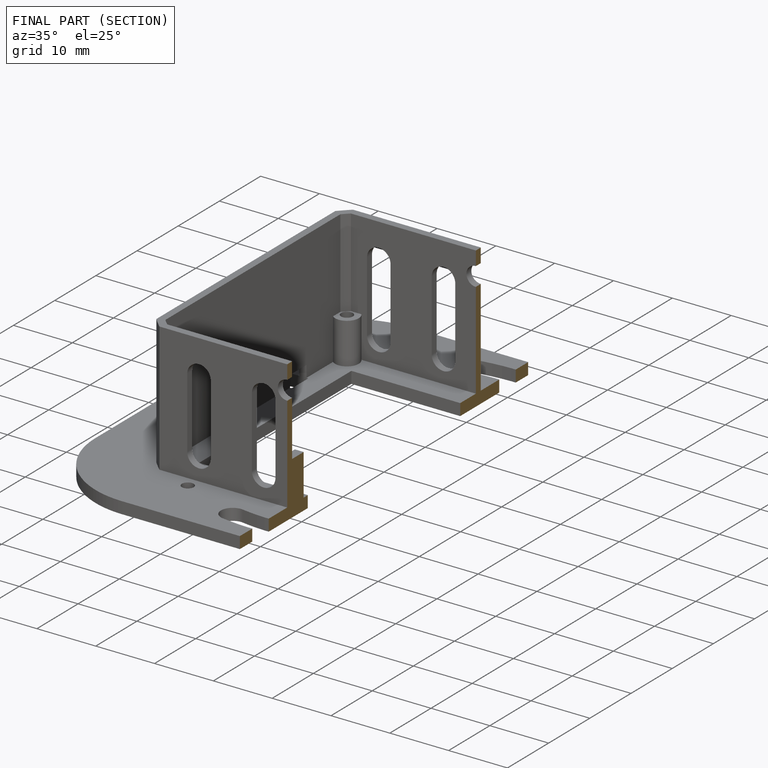
[diagram: finished part — half-section view (interior)]
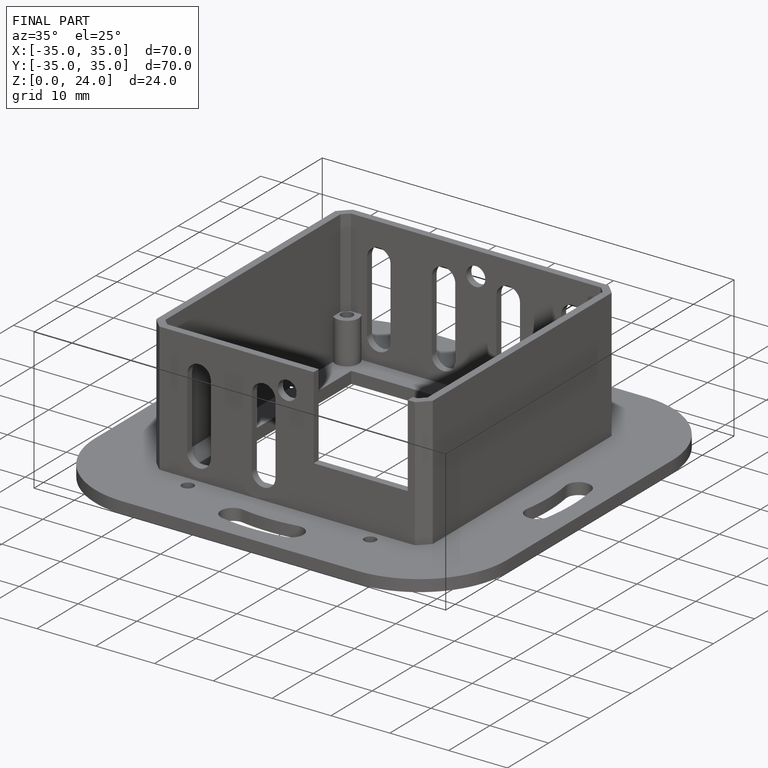
[diagram: finished part — iso view with bounding-box wireframe]
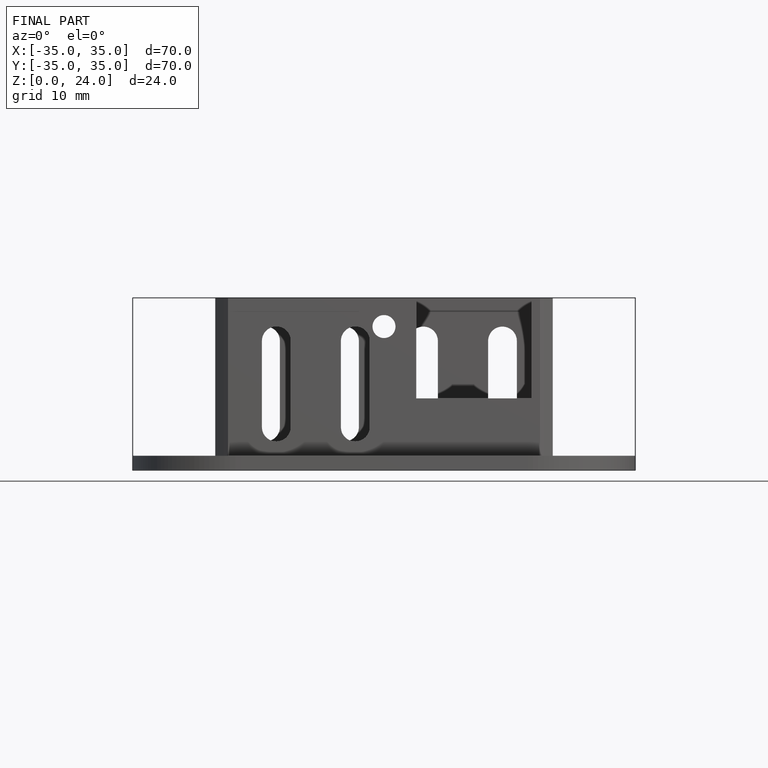
[diagram: finished part — front view with bounding-box wireframe]
